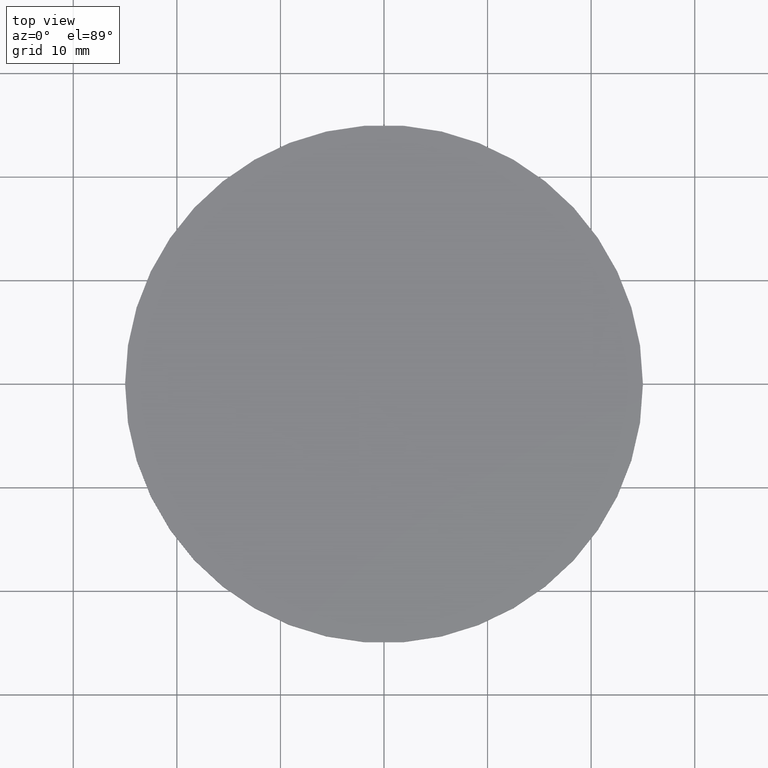
[diagram: clean part render]
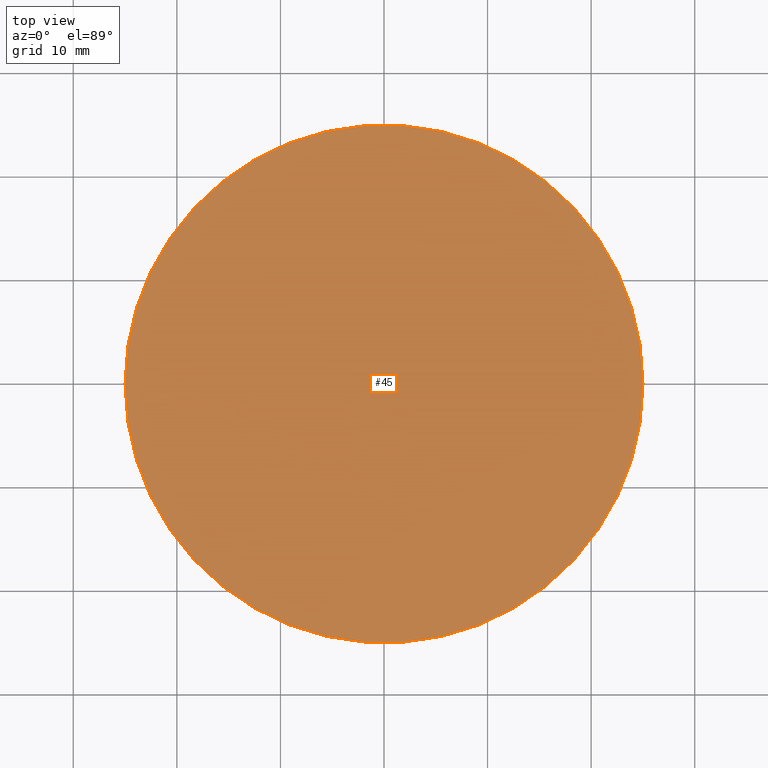
[diagram: same view with one face highlighted and labeled with its STEP entity id]
A machine part, top view. The second image highlights one B-rep face of the part: STEP entity #45.
In plain terms, the highlighted planar face has unit normal (0, 0, 1).
Its self-contained STEP definition (entity closure, byte-faithful):
#11 = VERTEX_POINT ( 'NONE', #240 ) ;
#20 = DIRECTION ( 'NONE',  ( 0.0000000000000000000, 0.0000000000000000000, 1.000000000000000000 ) ) ;
#45 = ADVANCED_FACE ( 'NONE', ( #82 ), #133, .T. ) ;
#47 = DIRECTION ( 'NONE',  ( 1.000000000000000000, 0.0000000000000000000, -0.0000000000000000000 ) ) ;
#55 = CIRCLE ( 'NONE', #171, 25.00000000000000000 ) ;
#69 = ORIENTED_EDGE ( 'NONE', *, *, #80, .T. ) ;
#77 = AXIS2_PLACEMENT_3D ( 'NONE', #161, #103, #47 ) ;
#80 = EDGE_CURVE ( 'NONE', #11, #111, #211, .T. ) ;
#82 = FACE_OUTER_BOUND ( 'NONE', #216, .T. ) ;
#103 = DIRECTION ( 'NONE',  ( 0.0000000000000000000, 0.0000000000000000000, 1.000000000000000000 ) ) ;
#105 = DIRECTION ( 'NONE',  ( 1.000000000000000000, 0.0000000000000000000, 0.0000000000000000000 ) ) ;
#111 = VERTEX_POINT ( 'NONE', #162 ) ;
#133 = PLANE ( 'NONE',  #77 ) ;
#141 = CARTESIAN_POINT ( 'NONE',  ( 0.0000000000000000000, 0.0000000000000000000, 1.100000000000000100 ) ) ;
#161 = CARTESIAN_POINT ( 'NONE',  ( 0.0000000000000000000, 0.0000000000000000000, 1.100000000000000100 ) ) ;
#162 = CARTESIAN_POINT ( 'NONE',  ( -25.00000000000000000, 0.0000000000000000000, 1.100000000000000100 ) ) ;
#171 = AXIS2_PLACEMENT_3D ( 'NONE', #141, #241, #105 ) ;
#174 = AXIS2_PLACEMENT_3D ( 'NONE', #202, #20, #176 ) ;
#176 = DIRECTION ( 'NONE',  ( 1.000000000000000000, 0.0000000000000000000, 0.0000000000000000000 ) ) ;
#201 = ORIENTED_EDGE ( 'NONE', *, *, #250, .T. ) ;
#202 = CARTESIAN_POINT ( 'NONE',  ( 0.0000000000000000000, 0.0000000000000000000, 1.100000000000000100 ) ) ;
#211 = CIRCLE ( 'NONE', #174, 25.00000000000000000 ) ;
#216 = EDGE_LOOP ( 'NONE', ( #201, #69 ) ) ;
#240 = CARTESIAN_POINT ( 'NONE',  ( 25.00000000000000000, 3.061616997868383000E-015, 1.100000000000000100 ) ) ;
#241 = DIRECTION ( 'NONE',  ( 0.0000000000000000000, 0.0000000000000000000, 1.000000000000000000 ) ) ;
#250 = EDGE_CURVE ( 'NONE', #111, #11, #55, .T. ) ;